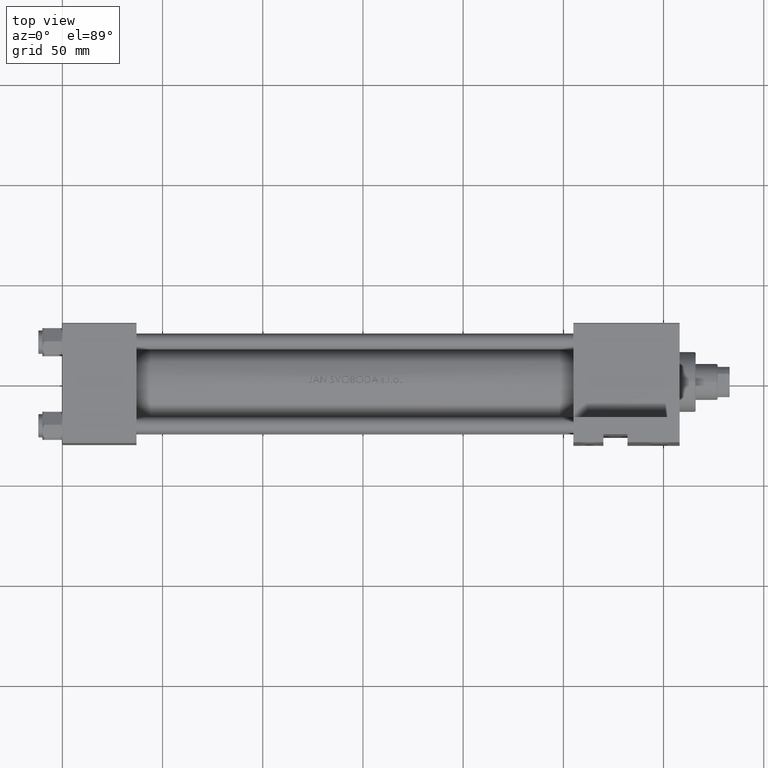
[diagram: clean part render]
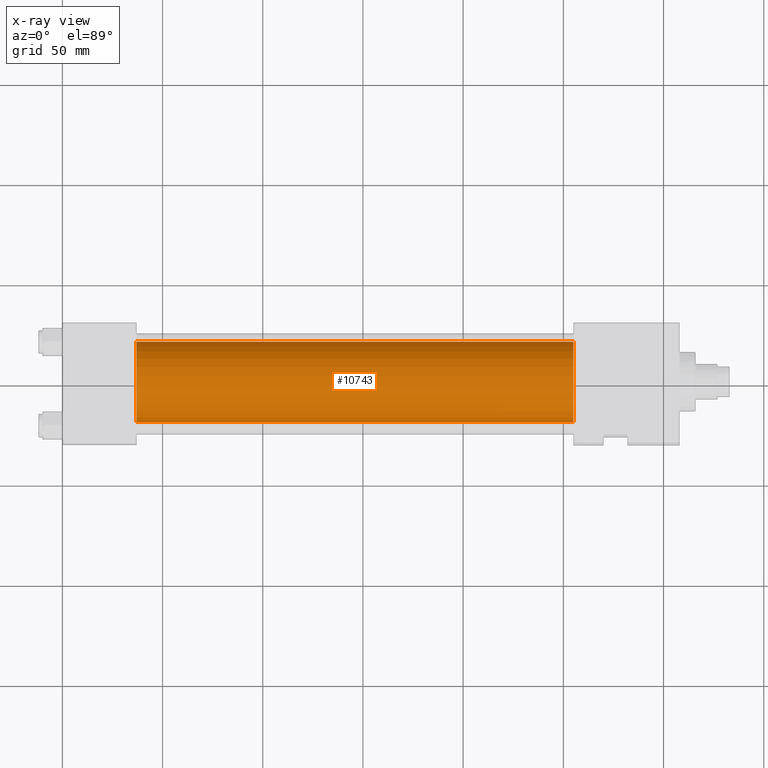
[diagram: x-ray — body ghosted, one internal face saturated and labeled with its STEP entity id]
A machine part, top view, then the same camera in x-ray: the body is ghosted and one INTERNAL B-rep face — a face not visible from any outside direction — is saturated and labeled: STEP entity #10743.
In plain terms, the highlighted cylindrical surface (partial cylindrical patch) has radius 20 mm, axis along (-1, -0, 0).
Its self-contained STEP definition (entity closure, byte-faithful):
#1017 = CARTESIAN_POINT ( 'NONE',  ( 255.0000000000000000, -1.224646799147354686E-16, 21.00000000000000000 ) ) ;
#2197 = DIRECTION ( 'NONE',  ( 0.000000000000000000, 0.000000000000000000, -1.000000000000000000 ) ) ;
#3578 = CARTESIAN_POINT ( 'NONE',  ( 255.0000000000000000, -1.224646799147354686E-16, 21.00000000000000000 ) ) ;
#4325 = CARTESIAN_POINT ( 'NONE',  ( 37.00000000000000000, 2.326828918379970970E-15, -19.00000000000000000 ) ) ;
#5620 = DIRECTION ( 'NONE',  ( 0.000000000000000000, 0.000000000000000000, -1.000000000000000000 ) ) ;
#5844 = ORIENTED_EDGE ( 'NONE', *, *, #31939, .F. ) ;
#5895 = CARTESIAN_POINT ( 'NONE',  ( 37.00000000000000000, -1.224646799147354686E-16, 1.000000000000000888 ) ) ;
#8393 = LINE ( 'NONE', #1017, #10934 ) ;
#8816 = VECTOR ( 'NONE', #23963, 1000.000000000000000 ) ;
#8879 = ORIENTED_EDGE ( 'NONE', *, *, #44664, .T. ) ;
#10743 = ADVANCED_FACE ( 'NONE', ( #30835 ), #19951, .F. ) ;
#10830 = ORIENTED_EDGE ( 'NONE', *, *, #40070, .F. ) ;
#10934 = VECTOR ( 'NONE', #12109, 1000.000000000000000 ) ;
#12109 = DIRECTION ( 'NONE',  ( -1.000000000000000000, -0.000000000000000000, -0.000000000000000000 ) ) ;
#13504 = VERTEX_POINT ( 'NONE', #18675 ) ;
#13823 = VERTEX_POINT ( 'NONE', #4325 ) ;
#15210 = EDGE_LOOP ( 'NONE', ( #20830, #8879, #10830, #5844 ) ) ;
#16019 = CARTESIAN_POINT ( 'NONE',  ( 255.0000000000000000, -1.224646799147354686E-16, 1.000000000000000888 ) ) ;
#16321 = LINE ( 'NONE', #31371, #8816 ) ;
#18675 = CARTESIAN_POINT ( 'NONE',  ( 255.0000000000000000, 2.326828918379970970E-15, -19.00000000000000000 ) ) ;
#19951 = CYLINDRICAL_SURFACE ( 'NONE', #30150, 20.00000000000000000 ) ;
#20830 = ORIENTED_EDGE ( 'NONE', *, *, #35978, .T. ) ;
#20911 = DIRECTION ( 'NONE',  ( 1.000000000000000000, 0.000000000000000000, 0.000000000000000000 ) ) ;
#21119 = DIRECTION ( 'NONE',  ( 1.000000000000000000, 0.000000000000000000, 0.000000000000000000 ) ) ;
#21197 = CARTESIAN_POINT ( 'NONE',  ( 37.00000000000000000, -1.224646799147354686E-16, 21.00000000000000000 ) ) ;
#23963 = DIRECTION ( 'NONE',  ( -1.000000000000000000, -0.000000000000000000, -0.000000000000000000 ) ) ;
#28391 = AXIS2_PLACEMENT_3D ( 'NONE', #5895, #20911, #2197 ) ;
#30150 = AXIS2_PLACEMENT_3D ( 'NONE', #16019, #45859, #31073 ) ;
#30835 = FACE_OUTER_BOUND ( 'NONE', #15210, .T. ) ;
#31073 = DIRECTION ( 'NONE',  ( 0.000000000000000000, 0.000000000000000000, 1.000000000000000000 ) ) ;
#31371 = CARTESIAN_POINT ( 'NONE',  ( 255.0000000000000000, 2.326828918379970970E-15, -19.00000000000000000 ) ) ;
#31939 = EDGE_CURVE ( 'NONE', #32565, #46773, #8393, .T. ) ;
#32565 = VERTEX_POINT ( 'NONE', #3578 ) ;
#32737 = CARTESIAN_POINT ( 'NONE',  ( 255.0000000000000000, -1.224646799147354686E-16, 1.000000000000000888 ) ) ;
#35978 = EDGE_CURVE ( 'NONE', #32565, #13504, #44928, .T. ) ;
#37042 = CIRCLE ( 'NONE', #28391, 20.00000000000000000 ) ;
#39401 = AXIS2_PLACEMENT_3D ( 'NONE', #32737, #21119, #5620 ) ;
#40070 = EDGE_CURVE ( 'NONE', #46773, #13823, #37042, .T. ) ;
#44664 = EDGE_CURVE ( 'NONE', #13504, #13823, #16321, .T. ) ;
#44928 = CIRCLE ( 'NONE', #39401, 20.00000000000000000 ) ;
#45859 = DIRECTION ( 'NONE',  ( -1.000000000000000000, -0.000000000000000000, -0.000000000000000000 ) ) ;
#46773 = VERTEX_POINT ( 'NONE', #21197 ) ;